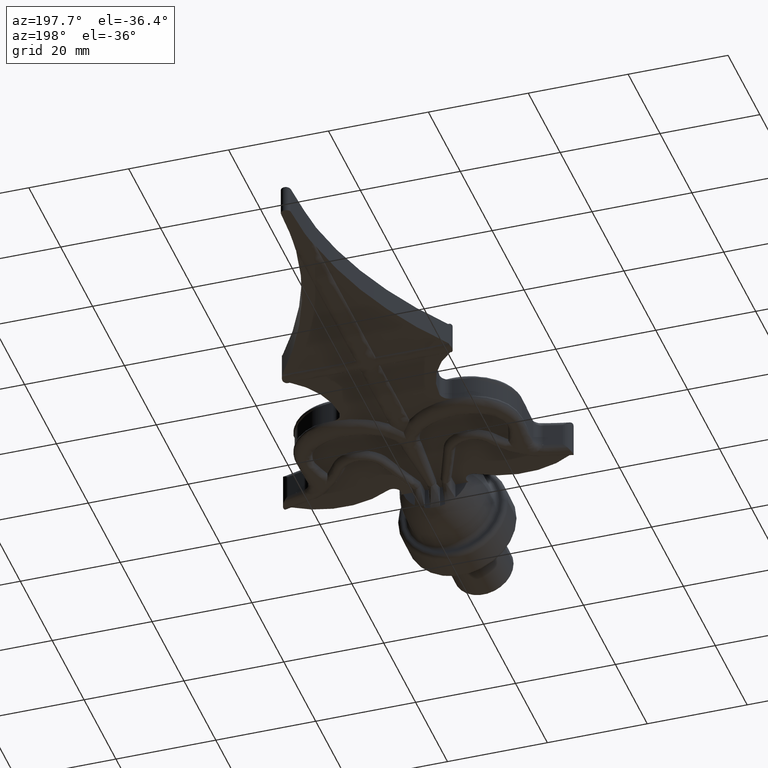
[diagram: clean part render]
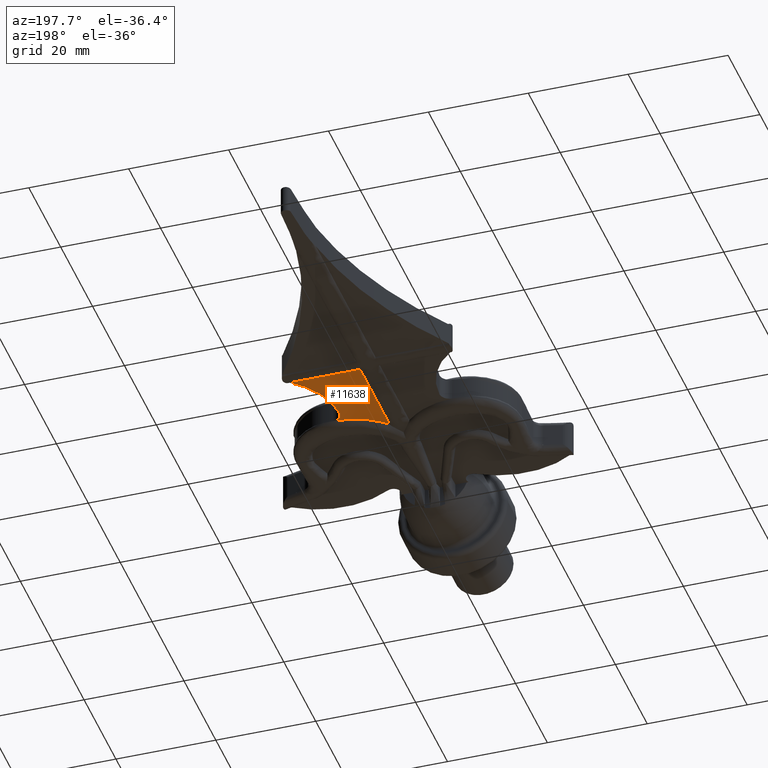
[diagram: same view with one face highlighted and labeled with its STEP entity id]
A machine part, auxiliary view. The second image highlights one B-rep face of the part: STEP entity #11638.
In plain terms, the highlighted planar face has unit normal (0, 0, -1).
Its self-contained STEP definition (entity closure, byte-faithful):
#74 = DIRECTION ( 'NONE',  ( 1.000000000000000000, -0.000000000000000000, -0.000000000000000000 ) ) ;
#163 = LINE ( 'NONE', #9225, #11870 ) ;
#308 = DIRECTION ( 'NONE',  ( 1.000000000000000000, 0.000000000000000000, 0.000000000000000000 ) ) ;
#1725 = VERTEX_POINT ( 'NONE', #3340 ) ;
#1920 = LINE ( 'NONE', #16368, #5301 ) ;
#2059 = CARTESIAN_POINT ( 'NONE',  ( 25.50000000000002132, 59.00000000000000711, -2.250000000000000444 ) ) ;
#2178 = DIRECTION ( 'NONE',  ( 1.000000000000000000, 0.000000000000000000, 0.000000000000000000 ) ) ;
#2607 = CARTESIAN_POINT ( 'NONE',  ( 10.00000000000000178, 58.99999999999999289, -2.250000000000000444 ) ) ;
#2634 = AXIS2_PLACEMENT_3D ( 'NONE', #3775, #9633, #9771 ) ;
#3117 = EDGE_CURVE ( 'NONE', #17573, #18845, #12101, .T. ) ;
#3340 = CARTESIAN_POINT ( 'NONE',  ( 1.999999999999981348, 71.40000000000001990, -2.249999999999997335 ) ) ;
#3618 = EDGE_CURVE ( 'NONE', #18845, #1725, #1920, .T. ) ;
#3734 = PLANE ( 'NONE',  #5132 ) ;
#3775 = CARTESIAN_POINT ( 'NONE',  ( 12.00000000000000000, 59.00000000000000000, -2.250000000000000444 ) ) ;
#4317 = CIRCLE ( 'NONE', #6849, 15.50000000000002132 ) ;
#5066 = CARTESIAN_POINT ( 'NONE',  ( 0.000000000000000000, 0.000000000000000000, -2.250000000000000444 ) ) ;
#5132 = AXIS2_PLACEMENT_3D ( 'NONE', #5066, #5133, #2178 ) ;
#5133 = DIRECTION ( 'NONE',  ( 0.000000000000000000, 0.000000000000000000, -1.000000000000000000 ) ) ;
#5301 = VECTOR ( 'NONE', #13176, 1000.000000000000000 ) ;
#5632 = EDGE_LOOP ( 'NONE', ( #15369, #19794, #18935, #12706, #11039 ) ) ;
#6372 = EDGE_CURVE ( 'NONE', #19844, #19288, #4317, .T. ) ;
#6849 = AXIS2_PLACEMENT_3D ( 'NONE', #2059, #15746, #308 ) ;
#7189 = CARTESIAN_POINT ( 'NONE',  ( 4.596722235691423464, 55.39362691858608656, -2.250000000000000444 ) ) ;
#8742 = CARTESIAN_POINT ( 'NONE',  ( 1.999999999999988676, 52.85543771738596064, -2.250000000000000444 ) ) ;
#8804 = CARTESIAN_POINT ( 'NONE',  ( 8.179364468974945623, 56.99999999999978684, -2.250000000000000888 ) ) ;
#9225 = CARTESIAN_POINT ( 'NONE',  ( 19.99999999999998224, 71.40000000000003411, -2.250000000000000444 ) ) ;
#9633 = DIRECTION ( 'NONE',  ( -0.000000000000000000, -0.000000000000000000, 1.000000000000000000 ) ) ;
#9749 = CIRCLE ( 'NONE', #2634, 2.000000000000001776 ) ;
#9771 = DIRECTION ( 'NONE',  ( 1.000000000000000000, 0.000000000000000000, 0.000000000000000000 ) ) ;
#11039 = ORIENTED_EDGE ( 'NONE', *, *, #16092, .T. ) ;
#11638 = ADVANCED_FACE ( 'NONE', ( #19853 ), #3734, .T. ) ;
#11870 = VECTOR ( 'NONE', #74, 1000.000000000000000 ) ;
#12101 = B_SPLINE_CURVE_WITH_KNOTS ( 'NONE', 3,
 ( #16357, #8804, #7189, #8742 ),
 .UNSPECIFIED., .F., .F.,
 ( 4, 4 ),
 ( 0.5506758038016321688, 0.7962666604034440709 ),
 .UNSPECIFIED. ) ;
#12706 = ORIENTED_EDGE ( 'NONE', *, *, #6372, .T. ) ;
#13176 = DIRECTION ( 'NONE',  ( -4.081702296416009587E-16, 1.000000000000000000, -0.000000000000000000 ) ) ;
#14670 = CARTESIAN_POINT ( 'NONE',  ( 12.00000000000000000, 56.99999999999999289, -2.250000000000000444 ) ) ;
#15369 = ORIENTED_EDGE ( 'NONE', *, *, #3117, .T. ) ;
#15746 = DIRECTION ( 'NONE',  ( -0.000000000000000000, -0.000000000000000000, 1.000000000000000000 ) ) ;
#16092 = EDGE_CURVE ( 'NONE', #19288, #17573, #9749, .T. ) ;
#16357 = CARTESIAN_POINT ( 'NONE',  ( 12.00000000000000000, 56.99999999999999289, -2.250000000000000444 ) ) ;
#16368 = CARTESIAN_POINT ( 'NONE',  ( 1.999999999999957589, 129.5000000000000000, -2.250000000000000444 ) ) ;
#16596 = CARTESIAN_POINT ( 'NONE',  ( 16.20000000000000284, 71.40000000000003411, -2.250000000000000444 ) ) ;
#17103 = CARTESIAN_POINT ( 'NONE',  ( 1.999999999999988676, 52.85543771738596064, -2.250000000000000444 ) ) ;
#17573 = VERTEX_POINT ( 'NONE', #14670 ) ;
#18788 = EDGE_CURVE ( 'NONE', #1725, #19844, #163, .T. ) ;
#18845 = VERTEX_POINT ( 'NONE', #17103 ) ;
#18935 = ORIENTED_EDGE ( 'NONE', *, *, #18788, .T. ) ;
#19288 = VERTEX_POINT ( 'NONE', #2607 ) ;
#19794 = ORIENTED_EDGE ( 'NONE', *, *, #3618, .T. ) ;
#19844 = VERTEX_POINT ( 'NONE', #16596 ) ;
#19853 = FACE_OUTER_BOUND ( 'NONE', #5632, .T. ) ;